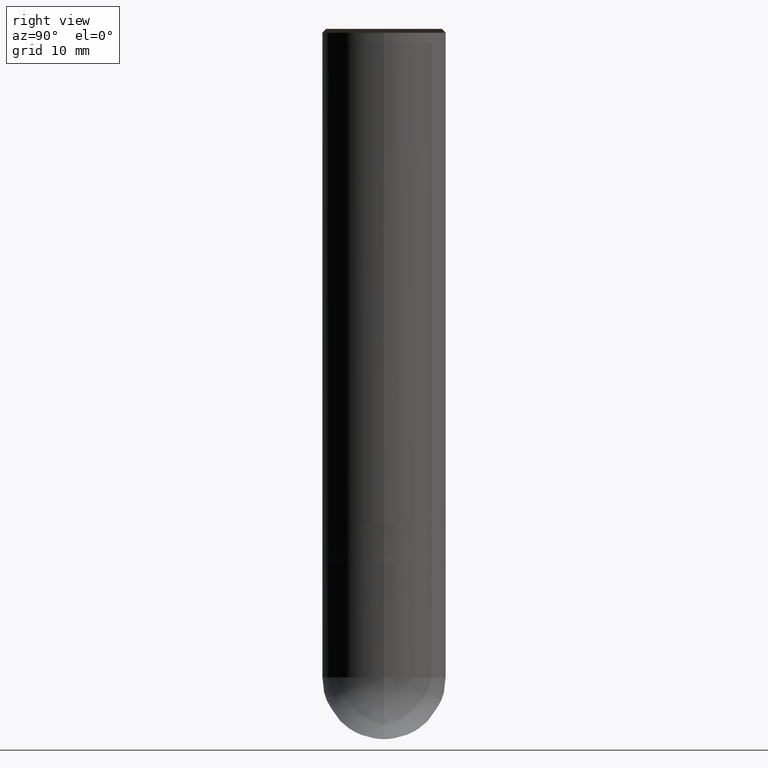
[diagram: clean part render]
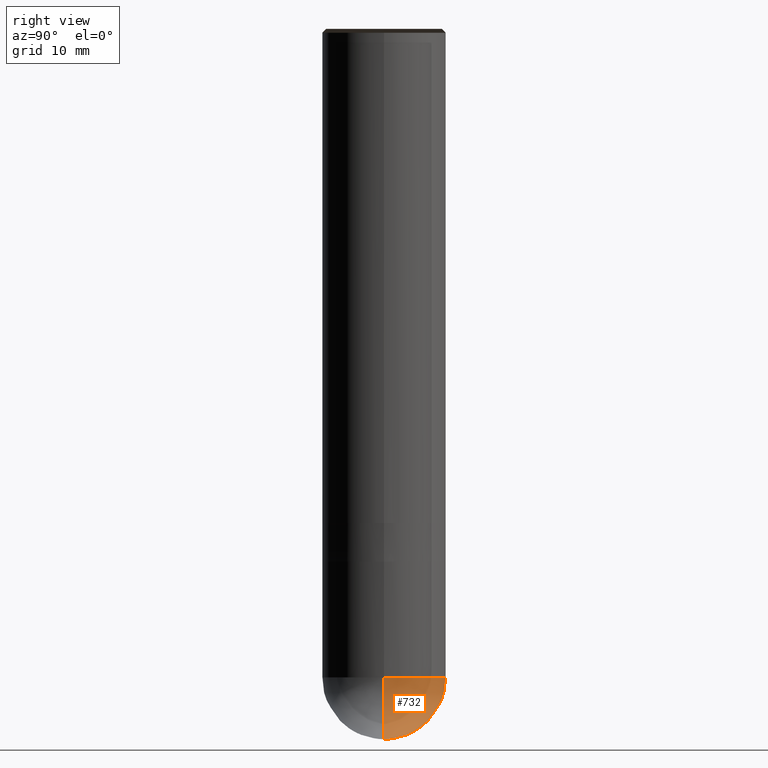
[diagram: same view with one face highlighted and labeled with its STEP entity id]
A machine part, right view. The second image highlights one B-rep face of the part: STEP entity #732.
In plain terms, the highlighted face is a freeform B-spline surface patch.
Its self-contained STEP definition (entity closure, byte-faithful):
#660=CARTESIAN_POINT('',(0.0,0.0,-28.0));
#661=CARTESIAN_POINT('',(8.0,0.0,-28.0));
#662=CARTESIAN_POINT('',(8.0,8.0,-28.0));
#663=CARTESIAN_POINT('',(0.0,8.0,-28.0));
#664=CARTESIAN_POINT('',(-8.0,8.0,-28.0));
#665=CARTESIAN_POINT('',(-8.0,0.0,-28.0));
#666=CARTESIAN_POINT('',(8.0,0.0,-20.0));
#667=CARTESIAN_POINT('',(8.0,8.0,-20.0));
#668=CARTESIAN_POINT('',(0.0,8.0,-20.0));
#669=CARTESIAN_POINT('',(-8.0,8.0,-20.0));
#670=CARTESIAN_POINT('',(-8.0,0.0,-20.0));
#717=(
BOUNDED_SURFACE()
B_SPLINE_SURFACE(2,2,(
(#660,#660,#660,#660,#660),
(#661,#662,#663,#664,#665),
(#666,#667,#668,#669,#670)
), .UNSPECIFIED.,.F.,.F.,.F.)
B_SPLINE_SURFACE_WITH_KNOTS((3,3),(3,2,3),(
0.0,1.0),(
0.0,0.5,1.0), .UNSPECIFIED.)
GEOMETRIC_REPRESENTATION_ITEM()
RATIONAL_B_SPLINE_SURFACE(((1.0,0.707106781187,1.0,0.707106781187,1.0),
(0.707106781187,0.5,0.707106781187,0.5,0.707106781187),
(1.0,0.707106781187,1.0,0.707106781187,1.0)
))
REPRESENTATION_ITEM('')
SURFACE()
);
#718=(
BOUNDED_CURVE()
B_SPLINE_CURVE(2,(#670,#665,#660),.UNSPECIFIED.,.F.,.F.)
B_SPLINE_CURVE_WITH_KNOTS((3,3),
(0.0,1.0),.UNSPECIFIED.)
CURVE()
GEOMETRIC_REPRESENTATION_ITEM()
RATIONAL_B_SPLINE_CURVE((1.0,0.707106781187,1.0))
REPRESENTATION_ITEM('')
);
#719=(
BOUNDED_CURVE()
B_SPLINE_CURVE(2,(#660,#661,#666),.UNSPECIFIED.,.F.,.F.)
B_SPLINE_CURVE_WITH_KNOTS((3,3),
(0.0,1.0),.UNSPECIFIED.)
CURVE()
GEOMETRIC_REPRESENTATION_ITEM()
RATIONAL_B_SPLINE_CURVE((1.0,0.707106781187,1.0))
REPRESENTATION_ITEM('')
);
#720=(
BOUNDED_CURVE()
B_SPLINE_CURVE(2,(#666,#667,#668,#669,#670),.UNSPECIFIED.,.F.,.F.)
B_SPLINE_CURVE_WITH_KNOTS((3,2,3),
(0.0,0.5,1.0),.UNSPECIFIED.)
CURVE()
GEOMETRIC_REPRESENTATION_ITEM()
RATIONAL_B_SPLINE_CURVE((1.0,0.707106781187,1.0,0.707106781187,1.0))
REPRESENTATION_ITEM('')
);
#721=VERTEX_POINT('',#660);
#722=VERTEX_POINT('',#666);
#723=VERTEX_POINT('',#670);
#724=EDGE_CURVE('',#723,#721,#718,.T.);
#725=EDGE_CURVE('',#721,#722,#719,.T.);
#726=EDGE_CURVE('',#722,#723,#720,.T.);
#727=ORIENTED_EDGE('',*,*,#724,.T.);
#728=ORIENTED_EDGE('',*,*,#725,.T.);
#729=ORIENTED_EDGE('',*,*,#726,.T.);
#730=EDGE_LOOP('',(#727,#728,#729));
#731=FACE_OUTER_BOUND('',#730,.T.);
#732=ADVANCED_FACE('',(#731),#717,.T.);